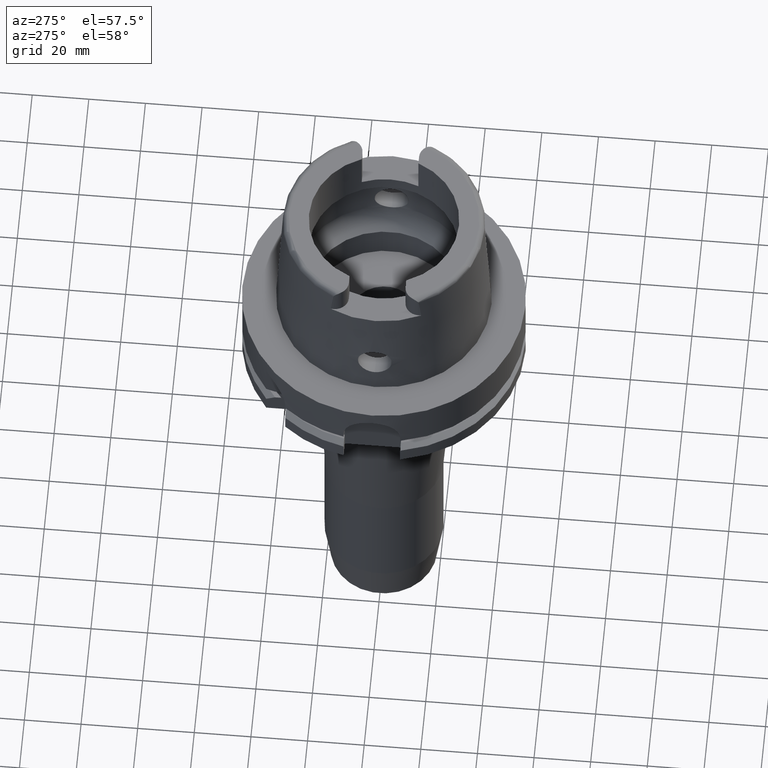
[diagram: clean part render]
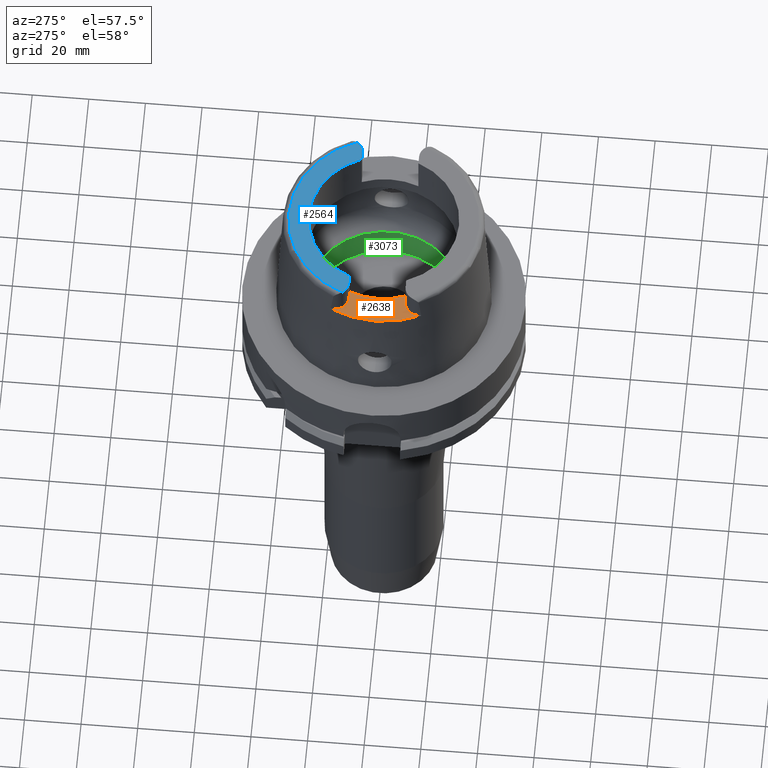
[diagram: same view with three faces highlighted in distinct colors, each labeled with its STEP entity id]
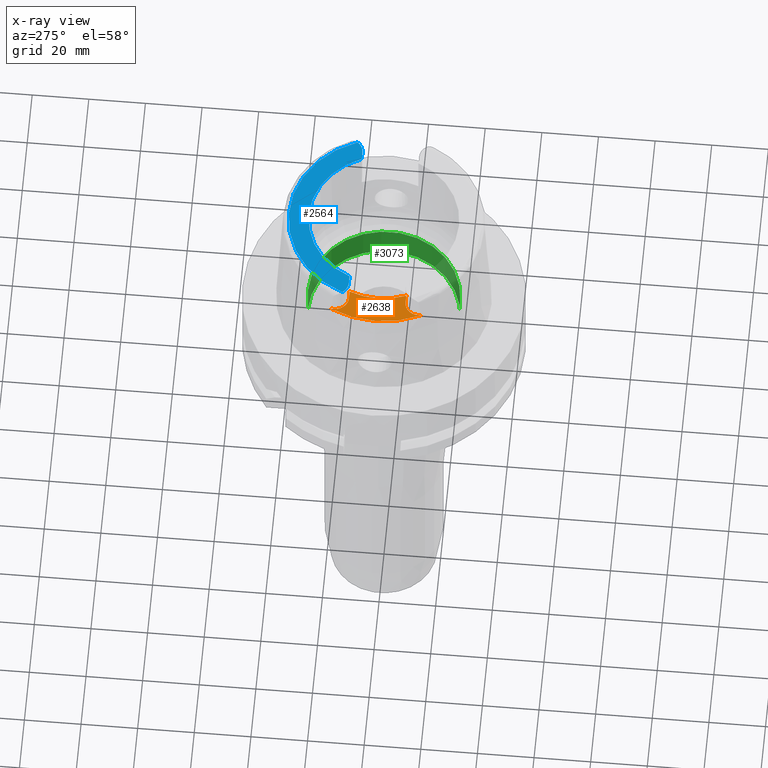
[diagram: x-ray of the same camera — body ghosted, the three highlighted faces saturated]
A machine part, auxiliary view with three faces highlighted in distinct colors.
The next image is the same camera in x-ray (body ghosted, the three faces saturated) — at least one of them is partly hidden behind the body in this view.
Their STEP definitions:

[orange] entity #2638 — the highlighted planar face has unit normal (0, 0, 1).
#100=CARTESIAN_POINT('',(0.E0,0.E0,4.E1));
#101=DIRECTION('',(0.E0,0.E0,1.E0));
#102=DIRECTION('',(-9.259134021805E-1,3.777358490566E-1,0.E0));
#103=AXIS2_PLACEMENT_3D('',#100,#101,#102);
#108=DIRECTION('',(-1.E0,1.435733797137E-13,0.E0));
#109=VECTOR('',#108,2.833294842218E0);
#110=CARTESIAN_POINT('',(-2.453670515778E1,-1.001E1,4.E1));
#111=LINE('',#110,#109);
#115=CARTESIAN_POINT('',(-2.737E1,-1.489E1,4.E1));
#116=DIRECTION('',(0.E0,0.E0,1.E0));
#117=DIRECTION('',(0.E0,1.E0,0.E0));
#118=AXIS2_PLACEMENT_3D('',#115,#116,#117);
#123=DIRECTION('',(1.119083709708E-6,-9.999999999994E-1,-1.731560047849E-13));
#124=VECTOR('',#123,1.107940431483E0);
#125=CARTESIAN_POINT('',(-3.225E1,-1.489E1,4.E1));
#126=LINE('',#125,#124);
#130=CARTESIAN_POINT('',(0.E0,0.E0,4.E1));
#131=DIRECTION('',(0.E0,0.E0,-1.E0));
#132=DIRECTION('',(-8.958345712660E-1,-4.443876921391E-1,0.E0));
#133=AXIS2_PLACEMENT_3D('',#130,#131,#132);
#138=DIRECTION('',(4.825266097351E-6,-9.999999999884E-1,1.731606717193E-13));
#139=VECTOR('',#138,1.107910570861E0);
#140=CARTESIAN_POINT('',(-3.225000534596E1,1.599791057085E1,4.E1));
#141=LINE('',#140,#139);
#145=CARTESIAN_POINT('',(-2.737E1,1.489E1,4.E1));
#146=DIRECTION('',(0.E0,0.E0,1.E0));
#147=DIRECTION('',(-1.E0,0.E0,0.E0));
#148=AXIS2_PLACEMENT_3D('',#145,#146,#147);
#153=DIRECTION('',(1.E0,1.442003377037E-13,0.E0));
#154=VECTOR('',#153,2.833294842218E0);
#155=CARTESIAN_POINT('',(-2.737E1,1.001E1,4.E1));
#156=LINE('',#155,#154);
#2247=CARTESIAN_POINT('',(-2.737E1,1.001E1,4.E1));
#2248=VERTEX_POINT('',#2247);
#2249=CARTESIAN_POINT('',(-3.225E1,1.489E1,4.E1));
#2250=VERTEX_POINT('',#2249);
#2253=CARTESIAN_POINT('',(-2.453670515778E1,1.001E1,4.E1));
#2254=VERTEX_POINT('',#2253);
#2255=CARTESIAN_POINT('',(-2.453670515778E1,-1.001E1,4.E1));
#2256=VERTEX_POINT('',#2255);
#2261=CARTESIAN_POINT('',(-2.737E1,-1.001E1,4.E1));
#2262=VERTEX_POINT('',#2261);
#2263=CARTESIAN_POINT('',(-3.225E1,-1.489E1,4.E1));
#2264=VERTEX_POINT('',#2263);
#2265=CARTESIAN_POINT('',(-3.224999876012E1,-1.599794043148E1,4.E1));
#2266=VERTEX_POINT('',#2265);
#2267=CARTESIAN_POINT('',(-3.224999999999E1,1.599793480981E1,4.E1));
#2268=VERTEX_POINT('',#2267);
#2618=CARTESIAN_POINT('',(0.E0,0.E0,4.E1));
#2619=DIRECTION('',(0.E0,0.E0,1.E0));
#2620=DIRECTION('',(0.E0,1.E0,0.E0));
#2621=AXIS2_PLACEMENT_3D('',#2618,#2619,#2620);
#2622=PLANE('',#2621);
#2623=ORIENTED_EDGE('',*,*,#2601,.T.);
#2625=ORIENTED_EDGE('',*,*,#2624,.T.);
#2627=ORIENTED_EDGE('',*,*,#2626,.T.);
#2629=ORIENTED_EDGE('',*,*,#2628,.T.);
#2631=ORIENTED_EDGE('',*,*,#2630,.T.);
#2633=ORIENTED_EDGE('',*,*,#2632,.T.);
#2634=ORIENTED_EDGE('',*,*,#2573,.T.);
#2635=ORIENTED_EDGE('',*,*,#2590,.T.);
#2636=EDGE_LOOP('',(#2623,#2625,#2627,#2629,#2631,#2633,#2634,#2635));
#2637=FACE_OUTER_BOUND('',#2636,.F.);
#104=CIRCLE('',#103,2.65E1);
#119=CIRCLE('',#118,4.88E0);
#134=CIRCLE('',#133,3.599995025244E1);
#149=CIRCLE('',#148,4.88E0);
#2573=EDGE_CURVE('',#2250,#2248,#149,.T.);
#2590=EDGE_CURVE('',#2248,#2254,#156,.T.);
#2601=EDGE_CURVE('',#2254,#2256,#104,.T.);
#2624=EDGE_CURVE('',#2256,#2262,#111,.T.);
#2626=EDGE_CURVE('',#2262,#2264,#119,.T.);
#2628=EDGE_CURVE('',#2264,#2266,#126,.T.);
#2630=EDGE_CURVE('',#2266,#2268,#134,.T.);
#2632=EDGE_CURVE('',#2268,#2250,#141,.T.);
#2638=ADVANCED_FACE('',(#2637),#2622,.T.);

[blue] entity #2564 — the highlighted planar face has unit normal (0, 0, 1).
#17=CARTESIAN_POINT('',(-2.737E1,1.489E1,5.E1));
#18=DIRECTION('',(0.E0,0.E0,-1.E0));
#19=DIRECTION('',(0.E0,-1.E0,0.E0));
#20=AXIS2_PLACEMENT_3D('',#17,#18,#19);
#26=CARTESIAN_POINT('',(0.E0,0.E0,5.E1));
#27=DIRECTION('',(0.E0,0.E0,-1.E0));
#28=DIRECTION('',(-9.332215253018E-1,3.593015233942E-1,0.E0));
#29=AXIS2_PLACEMENT_3D('',#26,#27,#28);
#34=CARTESIAN_POINT('',(2.737E1,1.489E1,5.E1));
#35=DIRECTION('',(0.E0,0.E0,-1.E0));
#36=DIRECTION('',(8.163632566569E-1,-5.775387720150E-1,0.E0));
#37=AXIS2_PLACEMENT_3D('',#34,#35,#36);
#42=CARTESIAN_POINT('',(0.E0,0.E0,5.E1));
#43=DIRECTION('',(0.E0,0.E0,1.E0));
#44=DIRECTION('',(9.259134021805E-1,3.777358490566E-1,0.E0));
#45=AXIS2_PLACEMENT_3D('',#42,#43,#44);
#50=CARTESIAN_POINT('',(0.E0,0.E0,5.E1));
#51=DIRECTION('',(0.E0,0.E0,1.E0));
#52=DIRECTION('',(0.E0,1.E0,0.E0));
#53=AXIS2_PLACEMENT_3D('',#50,#51,#52);
#72=DIRECTION('',(1.E0,1.429464217237E-13,0.E0));
#73=VECTOR('',#72,2.833294842218E0);
#74=CARTESIAN_POINT('',(-2.737E1,1.001E1,5.E1));
#75=LINE('',#74,#73);
#2130=DIRECTION('',(1.E0,-1.423194637337E-13,0.E0));
#2131=VECTOR('',#2130,2.833294842218E0);
#2132=CARTESIAN_POINT('',(2.453670515778E1,1.001E1,5.E1));
#2133=LINE('',#2132,#2131);
#2219=CARTESIAN_POINT('',(-2.737E1,1.001E1,5.E1));
#2220=CARTESIAN_POINT('',(-3.135385269249E1,1.207161079257E1,5.E1));
#2221=VERTEX_POINT('',#2219);
#2222=VERTEX_POINT('',#2220);
#2223=CARTESIAN_POINT('',(3.135385269249E1,1.207161079257E1,5.E1));
#2224=VERTEX_POINT('',#2223);
#2225=CARTESIAN_POINT('',(2.737E1,1.001E1,5.E1));
#2226=VERTEX_POINT('',#2225);
#2227=CARTESIAN_POINT('',(2.453670515778E1,1.001E1,5.E1));
#2228=VERTEX_POINT('',#2227);
#2229=CARTESIAN_POINT('',(0.E0,2.65E1,5.E1));
#2230=VERTEX_POINT('',#2229);
#2231=CARTESIAN_POINT('',(-2.453670515778E1,1.001E1,5.E1));
#2232=VERTEX_POINT('',#2231);
#2543=CARTESIAN_POINT('',(0.E0,0.E0,5.E1));
#2544=DIRECTION('',(0.E0,0.E0,1.E0));
#2545=DIRECTION('',(0.E0,1.E0,0.E0));
#2546=AXIS2_PLACEMENT_3D('',#2543,#2544,#2545);
#2547=PLANE('',#2546);
#2549=ORIENTED_EDGE('',*,*,#2548,.T.);
#2551=ORIENTED_EDGE('',*,*,#2550,.T.);
#2553=ORIENTED_EDGE('',*,*,#2552,.T.);
#2555=ORIENTED_EDGE('',*,*,#2554,.F.);
#2557=ORIENTED_EDGE('',*,*,#2556,.T.);
#2559=ORIENTED_EDGE('',*,*,#2558,.T.);
#2561=ORIENTED_EDGE('',*,*,#2560,.F.);
#2562=EDGE_LOOP('',(#2549,#2551,#2553,#2555,#2557,#2559,#2561));
#2563=FACE_OUTER_BOUND('',#2562,.F.);
#21=CIRCLE('',#20,4.88E0);
#30=CIRCLE('',#29,3.359743838136E1);
#38=CIRCLE('',#37,4.88E0);
#46=CIRCLE('',#45,2.65E1);
#54=CIRCLE('',#53,2.65E1);
#2548=EDGE_CURVE('',#2221,#2222,#21,.T.);
#2550=EDGE_CURVE('',#2222,#2224,#30,.T.);
#2552=EDGE_CURVE('',#2224,#2226,#38,.T.);
#2554=EDGE_CURVE('',#2228,#2226,#2133,.T.);
#2556=EDGE_CURVE('',#2228,#2230,#46,.T.);
#2558=EDGE_CURVE('',#2230,#2232,#54,.T.);
#2560=EDGE_CURVE('',#2221,#2232,#75,.T.);
#2564=ADVANCED_FACE('',(#2563),#2547,.T.);

[green] entity #3073 — the highlighted cylindrical surface (partial cylindrical patch) has radius 26.9 mm, axis along (0, 0, 1).
#792=CARTESIAN_POINT('',(0.E0,0.E0,0.E0));
#793=DIRECTION('',(0.E0,0.E0,1.E0));
#794=DIRECTION('',(0.E0,-1.E0,0.E0));
#795=AXIS2_PLACEMENT_3D('',#792,#793,#794);
#807=DIRECTION('',(0.E0,0.E0,1.E0));
#808=VECTOR('',#807,1.245E1);
#809=CARTESIAN_POINT('',(0.E0,-2.69E1,-1.245E1));
#810=LINE('',#809,#808);
#822=DIRECTION('',(0.E0,0.E0,1.E0));
#823=VECTOR('',#822,1.245E1);
#824=CARTESIAN_POINT('',(0.E0,2.69E1,-1.245E1));
#825=LINE('',#824,#823);
#837=CARTESIAN_POINT('',(0.E0,0.E0,-1.245E1));
#838=DIRECTION('',(0.E0,0.E0,-1.E0));
#839=DIRECTION('',(0.E0,1.E0,0.E0));
#840=AXIS2_PLACEMENT_3D('',#837,#838,#839);
#2327=CARTESIAN_POINT('',(0.E0,2.69E1,0.E0));
#2328=VERTEX_POINT('',#2327);
#2329=CARTESIAN_POINT('',(0.E0,-2.69E1,0.E0));
#2330=VERTEX_POINT('',#2329);
#2331=CARTESIAN_POINT('',(0.E0,2.69E1,-1.245E1));
#2332=VERTEX_POINT('',#2331);
#2333=CARTESIAN_POINT('',(0.E0,-2.69E1,-1.245E1));
#2334=VERTEX_POINT('',#2333);
#3061=CARTESIAN_POINT('',(0.E0,0.E0,-1.7575E2));
#3062=DIRECTION('',(0.E0,0.E0,1.E0));
#3063=DIRECTION('',(0.E0,1.E0,0.E0));
#3064=AXIS2_PLACEMENT_3D('',#3061,#3062,#3063);
#3065=CYLINDRICAL_SURFACE('',#3064,2.69E1);
#3066=ORIENTED_EDGE('',*,*,#3051,.T.);
#3067=ORIENTED_EDGE('',*,*,#3028,.F.);
#3068=ORIENTED_EDGE('',*,*,#3055,.F.);
#3070=ORIENTED_EDGE('',*,*,#3069,.F.);
#3071=EDGE_LOOP('',(#3066,#3067,#3068,#3070));
#3072=FACE_OUTER_BOUND('',#3071,.F.);
#796=CIRCLE('',#795,2.69E1);
#841=CIRCLE('',#840,2.69E1);
#3028=EDGE_CURVE('',#2330,#2328,#796,.T.);
#3051=EDGE_CURVE('',#2332,#2328,#825,.T.);
#3055=EDGE_CURVE('',#2334,#2330,#810,.T.);
#3069=EDGE_CURVE('',#2332,#2334,#841,.T.);
#3073=ADVANCED_FACE('',(#3072),#3065,.F.);